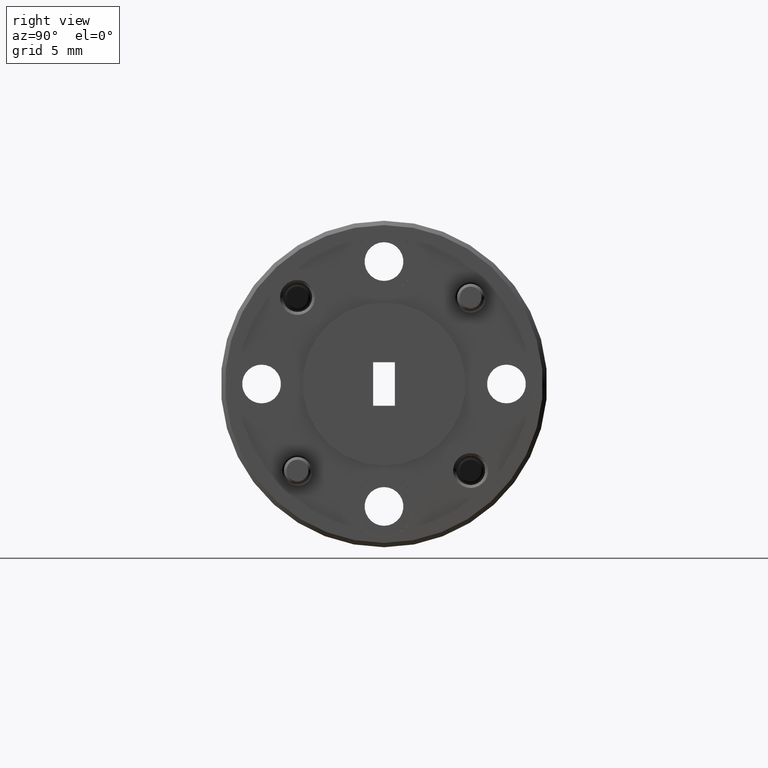
[diagram: clean part render]
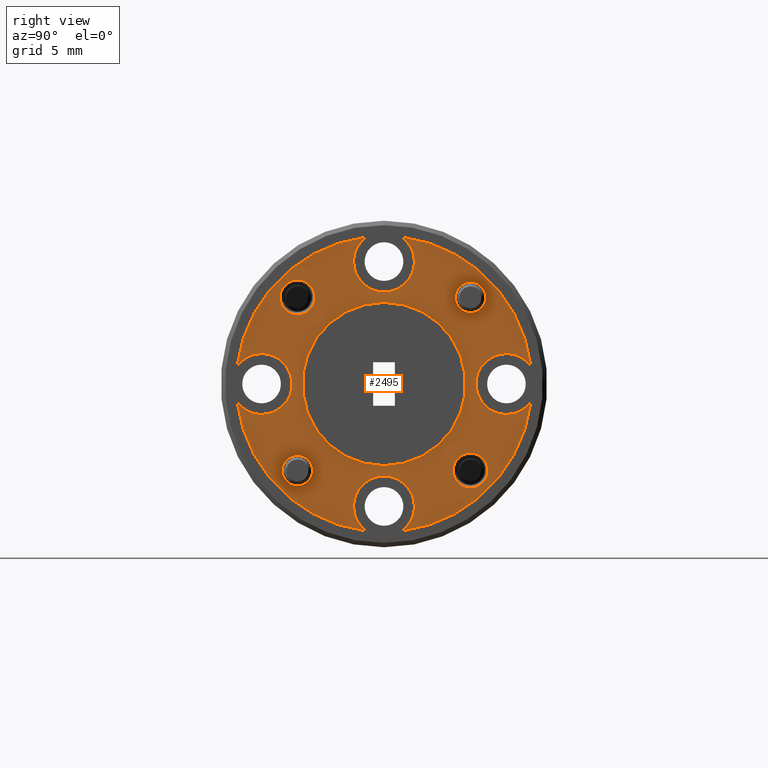
[diagram: same view with one face highlighted and labeled with its STEP entity id]
A machine part, right view. The second image highlights one B-rep face of the part: STEP entity #2495.
In plain terms, the highlighted planar face has unit normal (-1, 0, 0).
Its self-contained STEP definition (entity closure, byte-faithful):
#5 = VERTEX_POINT ( 'NONE', #2298 ) ;
#7 = ORIENTED_EDGE ( 'NONE', *, *, #1535, .T. ) ;
#30 = CIRCLE ( 'NONE', #2154, 0.07000000000000007600 ) ;
#33 = DIRECTION ( 'NONE',  ( -1.000000000000000000, -0.0000000000000000000, -0.0000000000000000000 ) ) ;
#39 = DIRECTION ( 'NONE',  ( 0.0000000000000000000, 0.0000000000000000000, -1.000000000000000000 ) ) ;
#59 = CARTESIAN_POINT ( 'NONE',  ( -2.214678697789515200, 0.9855597184799671500, 0.6486086257279395400 ) ) ;
#65 = DIRECTION ( 'NONE',  ( 0.0000000000000000000, 0.0000000000000000000, -1.000000000000000000 ) ) ;
#81 = DIRECTION ( 'NONE',  ( -1.000000000000000000, -0.0000000000000000000, -0.0000000000000000000 ) ) ;
#146 = CARTESIAN_POINT ( 'NONE',  ( -2.214678697788351700, 1.067935936271251700, 0.8174824079348077500 ) ) ;
#163 = CARTESIAN_POINT ( 'NONE',  ( -2.214678697787277400, 0.5878121540625364000, 0.6886086257260901600 ) ) ;
#169 = VERTEX_POINT ( 'NONE', #1468 ) ;
#183 = ORIENTED_EDGE ( 'NONE', *, *, #3136, .T. ) ;
#190 = CARTESIAN_POINT ( 'NONE',  ( -2.214678697788351700, 0.8284515845363033000, 0.5500574079348078400 ) ) ;
#305 = EDGE_CURVE ( 'NONE', #455, #1834, #619, .T. ) ;
#311 = DIRECTION ( 'NONE',  ( -1.000000000000000000, -0.0000000000000000000, -0.0000000000000000000 ) ) ;
#325 = DIRECTION ( 'NONE',  ( 0.0000000000000000000, 0.0000000000000000000, -1.000000000000000000 ) ) ;
#333 = DIRECTION ( 'NONE',  ( -1.000000000000000000, -0.0000000000000000000, -0.0000000000000000000 ) ) ;
#408 = CIRCLE ( 'NONE', #3214, 0.07000000000000007600 ) ;
#419 = ORIENTED_EDGE ( 'NONE', *, *, #4290, .T. ) ;
#431 = CIRCLE ( 'NONE', #458, 0.06999999999999993700 ) ;
#441 = CARTESIAN_POINT ( 'NONE',  ( -2.214678697788351700, 0.5054359362712517200, 0.8874824079348078200 ) ) ;
#455 = VERTEX_POINT ( 'NONE', #597 ) ;
#458 = AXIS2_PLACEMENT_3D ( 'NONE', #2041, #33, #2025 ) ;
#464 = CARTESIAN_POINT ( 'NONE',  ( -2.214678697788351700, 1.124110936271251800, 0.9292480561998594000 ) ) ;
#519 = CARTESIAN_POINT ( 'NONE',  ( -2.214678697788351700, 1.124110936271251800, 0.8457167596697562400 ) ) ;
#523 = DIRECTION ( 'NONE',  ( 0.0000000000000000000, 0.0000000000000000000, -1.000000000000000000 ) ) ;
#597 = CARTESIAN_POINT ( 'NONE',  ( -2.214678697788351700, 0.7866859362712517200, 1.074982407934807800 ) ) ;
#611 = CIRCLE ( 'NONE', #2309, 0.06999999999999993700 ) ;
#619 = CIRCLE ( 'NONE', #1495, 0.1874999999999999700 ) ;
#621 = CARTESIAN_POINT ( 'NONE',  ( -2.214678697788351700, 1.067935936271251700, 0.8874824079348078200 ) ) ;
#636 = CARTESIAN_POINT ( 'NONE',  ( -2.214678697788351700, 0.7866859362712517200, 0.8874824079348078200 ) ) ;
#674 = PLANE ( 'NONE',  #1071 ) ;
#759 = AXIS2_PLACEMENT_3D ( 'NONE', #621, #3620, #1945 ) ;
#782 = EDGE_CURVE ( 'NONE', #1834, #455, #1031, .T. ) ;
#827 = EDGE_CURVE ( 'NONE', #2995, #850, #30, .T. ) ;
#850 = VERTEX_POINT ( 'NONE', #4098 ) ;
#853 = ORIENTED_EDGE ( 'NONE', *, *, #2611, .F. ) ;
#857 = CARTESIAN_POINT ( 'NONE',  ( -2.214678697789515200, 0.5878121540625362900, 1.086356190143525200 ) ) ;
#858 = FACE_BOUND ( 'NONE', #1446, .T. ) ;
#872 = EDGE_LOOP ( 'NONE', ( #1205, #1343, #1607, #4304, #1958, #3531, #3794, #1432, #2169, #3798, #1003, #183, #3601, #853 ) ) ;
#906 = CARTESIAN_POINT ( 'NONE',  ( -2.214678697789515200, 0.9855597184799671500, 0.6886086257260902700 ) ) ;
#918 = VERTEX_POINT ( 'NONE', #464 ) ;
#966 = CARTESIAN_POINT ( 'NONE',  ( -2.214678697788351700, 0.7866859362712517200, 0.8874824079348078200 ) ) ;
#990 = CIRCLE ( 'NONE', #759, 0.07000000000000007600 ) ;
#999 = DIRECTION ( 'NONE',  ( -1.000000000000000000, 0.0000000000000000000, 0.0000000000000000000 ) ) ;
#1003 = ORIENTED_EDGE ( 'NONE', *, *, #827, .T. ) ;
#1007 = EDGE_LOOP ( 'NONE', ( #3590, #1287 ) ) ;
#1013 = AXIS2_PLACEMENT_3D ( 'NONE', #2322, #2020, #325 ) ;
#1023 = AXIS2_PLACEMENT_3D ( 'NONE', #3383, #2371, #1375 ) ;
#1031 = CIRCLE ( 'NONE', #2304, 0.1874999999999999700 ) ;
#1052 = DIRECTION ( 'NONE',  ( 0.0000000000000000000, 0.0000000000000000000, -1.000000000000000000 ) ) ;
#1065 = DIRECTION ( 'NONE',  ( -1.000000000000000000, -0.0000000000000000000, -0.0000000000000000000 ) ) ;
#1071 = AXIS2_PLACEMENT_3D ( 'NONE', #1675, #999, #3994 ) ;
#1075 = EDGE_CURVE ( 'NONE', #3699, #918, #1415, .T. ) ;
#1084 = CARTESIAN_POINT ( 'NONE',  ( -2.214678697789515200, 0.9855597184799671500, 0.6886086257260902700 ) ) ;
#1093 = DIRECTION ( 'NONE',  ( 0.0000000000000000000, 0.0000000000000000000, -1.000000000000000000 ) ) ;
#1095 = DIRECTION ( 'NONE',  ( -1.000000000000000000, -0.0000000000000000000, -0.0000000000000000000 ) ) ;
#1101 = DIRECTION ( 'NONE',  ( -1.000000000000000000, -0.0000000000000000000, -0.0000000000000000000 ) ) ;
#1102 = DIRECTION ( 'NONE',  ( -1.000000000000000000, -0.0000000000000000000, -0.0000000000000000000 ) ) ;
#1115 = CARTESIAN_POINT ( 'NONE',  ( -2.214678697787277400, 0.9855597184799670400, 1.086356190143525500 ) ) ;
#1122 = DIRECTION ( 'NONE',  ( 0.0000000000000000000, 0.0000000000000000000, -1.000000000000000000 ) ) ;
#1141 = CARTESIAN_POINT ( 'NONE',  ( -2.214678697789515200, 0.9855597184799671500, 0.7286086257242411200 ) ) ;
#1156 = DIRECTION ( 'NONE',  ( 6.829619984323820700E-015, 1.000000000000000000, 0.0000000000000000000 ) ) ;
#1180 = VERTEX_POINT ( 'NONE', #2761 ) ;
#1183 = CARTESIAN_POINT ( 'NONE',  ( -2.214678697787277400, 0.9855597184799670400, 1.051356190143046800 ) ) ;
#1200 = CARTESIAN_POINT ( 'NONE',  ( -2.214678697788351700, 0.7866859362712517200, 1.168732407934807800 ) ) ;
#1205 = ORIENTED_EDGE ( 'NONE', *, *, #2544, .T. ) ;
#1225 = EDGE_CURVE ( 'NONE', #2995, #1746, #3927, .T. ) ;
#1247 = EDGE_CURVE ( 'NONE', #3036, #3341, #1396, .T. ) ;
#1287 = ORIENTED_EDGE ( 'NONE', *, *, #3707, .T. ) ;
#1294 = CARTESIAN_POINT ( 'NONE',  ( -2.214678697788351700, 0.7866859362712517200, 0.6762324079348076600 ) ) ;
#1300 = DIRECTION ( 'NONE',  ( 0.0000000000000000000, 0.0000000000000000000, 1.000000000000000000 ) ) ;
#1301 = CIRCLE ( 'NONE', #3328, 0.3400000000000000800 ) ;
#1311 = CARTESIAN_POINT ( 'NONE',  ( -2.214678697788351700, 0.4492609362712516900, 0.8457167596697562400 ) ) ;
#1313 = CIRCLE ( 'NONE', #1023, 0.03999999999904438300 ) ;
#1332 = CARTESIAN_POINT ( 'NONE',  ( -2.214678697787277400, 0.5878121540625364000, 0.7236086257279128500 ) ) ;
#1343 = ORIENTED_EDGE ( 'NONE', *, *, #1247, .T. ) ;
#1344 = VERTEX_POINT ( 'NONE', #146 ) ;
#1350 = CIRCLE ( 'NONE', #1013, 0.07000000000000000700 ) ;
#1352 = CARTESIAN_POINT ( 'NONE',  ( -2.214678697788351700, 0.5054359362712517200, 0.8174824079348077500 ) ) ;
#1375 = DIRECTION ( 'NONE',  ( 6.829619984323820700E-015, 1.000000000000000000, 0.0000000000000000000 ) ) ;
#1389 = CARTESIAN_POINT ( 'NONE',  ( -2.214678697788351700, 0.7449202880062000300, 1.224907407934807900 ) ) ;
#1396 = CIRCLE ( 'NONE', #2192, 0.07000000000000000700 ) ;
#1415 = CIRCLE ( 'NONE', #2858, 0.3400000000000000800 ) ;
#1419 = AXIS2_PLACEMENT_3D ( 'NONE', #857, #1545, #1156 ) ;
#1432 = ORIENTED_EDGE ( 'NONE', *, *, #1726, .T. ) ;
#1446 = EDGE_LOOP ( 'NONE', ( #7, #4294 ) ) ;
#1447 = VERTEX_POINT ( 'NONE', #3561 ) ;
#1451 = CARTESIAN_POINT ( 'NONE',  ( -2.214678697788351700, 0.7866859362712517200, 0.6062324079348078200 ) ) ;
#1468 = CARTESIAN_POINT ( 'NONE',  ( -2.214678697787277400, 0.5878121540625364000, 0.6536086257242674800 ) ) ;
#1495 = AXIS2_PLACEMENT_3D ( 'NONE', #1835, #1540, #2528 ) ;
#1535 = EDGE_CURVE ( 'NONE', #2739, #2732, #3452, .T. ) ;
#1540 = DIRECTION ( 'NONE',  ( 1.000000000000000000, 0.0000000000000000000, 0.0000000000000000000 ) ) ;
#1545 = DIRECTION ( 'NONE',  ( -1.000000000000000000, 3.414809992352963000E-015, -0.0000000000000000000 ) ) ;
#1557 = AXIS2_PLACEMENT_3D ( 'NONE', #1115, #1101, #1093 ) ;
#1607 = ORIENTED_EDGE ( 'NONE', *, *, #1776, .F. ) ;
#1675 = CARTESIAN_POINT ( 'NONE',  ( -2.214678697788351700, 1.126685936271252000, 0.8874824079348078200 ) ) ;
#1680 = CARTESIAN_POINT ( 'NONE',  ( -2.214678697788351700, 0.7866859362712517200, 0.8874824079348078200 ) ) ;
#1721 = DIRECTION ( 'NONE',  ( 0.0000000000000000000, 0.0000000000000000000, 1.000000000000000000 ) ) ;
#1726 = EDGE_CURVE ( 'NONE', #3699, #1447, #431, .T. ) ;
#1744 = AXIS2_PLACEMENT_3D ( 'NONE', #1680, #333, #4081 ) ;
#1746 = VERTEX_POINT ( 'NONE', #1389 ) ;
#1763 = DIRECTION ( 'NONE',  ( -1.000000000000000000, -0.0000000000000000000, -0.0000000000000000000 ) ) ;
#1776 = EDGE_CURVE ( 'NONE', #3391, #3341, #2779, .T. ) ;
#1805 = DIRECTION ( 'NONE',  ( -1.000000000000000000, -0.0000000000000000000, -0.0000000000000000000 ) ) ;
#1834 = VERTEX_POINT ( 'NONE', #3230 ) ;
#1835 = CARTESIAN_POINT ( 'NONE',  ( -2.214678697788351700, 0.7866859362712517200, 0.8874824079348078200 ) ) ;
#1856 = FACE_BOUND ( 'NONE', #1007, .T. ) ;
#1900 = AXIS2_PLACEMENT_3D ( 'NONE', #1084, #1065, #1052 ) ;
#1921 = EDGE_LOOP ( 'NONE', ( #2870, #3350 ) ) ;
#1945 = DIRECTION ( 'NONE',  ( 0.0000000000000000000, -1.951319995474471800E-015, -1.000000000000000000 ) ) ;
#1958 = ORIENTED_EDGE ( 'NONE', *, *, #3581, .T. ) ;
#1967 = FACE_BOUND ( 'NONE', #2782, .T. ) ;
#1981 = DIRECTION ( 'NONE',  ( -1.000000000000000000, -0.0000000000000000000, -0.0000000000000000000 ) ) ;
#2020 = DIRECTION ( 'NONE',  ( -1.000000000000000000, -0.0000000000000000000, -0.0000000000000000000 ) ) ;
#2025 = DIRECTION ( 'NONE',  ( 0.0000000000000000000, 1.951319995474475300E-015, -1.000000000000000000 ) ) ;
#2041 = CARTESIAN_POINT ( 'NONE',  ( -2.214678697788351700, 0.7866859362712517200, 1.168732407934807800 ) ) ;
#2047 = AXIS2_PLACEMENT_3D ( 'NONE', #163, #1805, #3780 ) ;
#2052 = EDGE_CURVE ( 'NONE', #3391, #1344, #2058, .T. ) ;
#2058 = CIRCLE ( 'NONE', #3484, 0.07000000000000007600 ) ;
#2072 = FACE_BOUND ( 'NONE', #3716, .T. ) ;
#2084 = CIRCLE ( 'NONE', #3783, 0.07000000000000007600 ) ;
#2091 = DIRECTION ( 'NONE',  ( 0.0000000000000000000, -1.951319995474471800E-015, -1.000000000000000000 ) ) ;
#2108 = DIRECTION ( 'NONE',  ( -1.000000000000000000, -0.0000000000000000000, -0.0000000000000000000 ) ) ;
#2121 = CIRCLE ( 'NONE', #1900, 0.03999999999815079300 ) ;
#2154 = AXIS2_PLACEMENT_3D ( 'NONE', #4112, #1102, #2091 ) ;
#2169 = ORIENTED_EDGE ( 'NONE', *, *, #2410, .T. ) ;
#2192 = AXIS2_PLACEMENT_3D ( 'NONE', #1451, #2108, #2996 ) ;
#2288 = CIRCLE ( 'NONE', #2713, 0.07000000000000007600 ) ;
#2298 = CARTESIAN_POINT ( 'NONE',  ( -2.214678697789515600, 0.5478121540634920400, 1.086356190143525200 ) ) ;
#2304 = AXIS2_PLACEMENT_3D ( 'NONE', #3690, #3705, #1721 ) ;
#2309 = AXIS2_PLACEMENT_3D ( 'NONE', #1200, #3507, #3902 ) ;
#2322 = CARTESIAN_POINT ( 'NONE',  ( -2.214678697788351700, 0.7866859362712517200, 0.6062324079348078200 ) ) ;
#2371 = DIRECTION ( 'NONE',  ( -1.000000000000000000, 3.414809992352963000E-015, -0.0000000000000000000 ) ) ;
#2377 = ORIENTED_EDGE ( 'NONE', *, *, #2686, .T. ) ;
#2410 = EDGE_CURVE ( 'NONE', #1447, #1746, #611, .T. ) ;
#2445 = CARTESIAN_POINT ( 'NONE',  ( -2.214678697788351700, 1.067935936271251700, 0.8874824079348078200 ) ) ;
#2495 = ADVANCED_FACE ( 'NONE', ( #858, #3098, #2845, #1856, #2072, #1967 ), #674, .F. ) ;
#2528 = DIRECTION ( 'NONE',  ( 0.0000000000000000000, 0.0000000000000000000, 1.000000000000000000 ) ) ;
#2536 = CIRCLE ( 'NONE', #1419, 0.03999999999904438300 ) ;
#2544 = EDGE_CURVE ( 'NONE', #1180, #3036, #1350, .T. ) ;
#2565 = EDGE_CURVE ( 'NONE', #4126, #2777, #2121, .T. ) ;
#2611 = EDGE_CURVE ( 'NONE', #1180, #3934, #1301, .T. ) ;
#2613 = DIRECTION ( 'NONE',  ( -1.000000000000000000, -0.0000000000000000000, -0.0000000000000000000 ) ) ;
#2615 = CARTESIAN_POINT ( 'NONE',  ( -2.214678697788351700, 1.067935936271251700, 0.9574824079348078800 ) ) ;
#2618 = CARTESIAN_POINT ( 'NONE',  ( -2.214678697788351700, 0.4492609362712516900, 0.9292480561998596200 ) ) ;
#2625 = DIRECTION ( 'NONE',  ( 0.0000000000000000000, 0.0000000000000000000, -1.000000000000000000 ) ) ;
#2659 = AXIS2_PLACEMENT_3D ( 'NONE', #3386, #3491, #1122 ) ;
#2686 = EDGE_CURVE ( 'NONE', #169, #3969, #3315, .T. ) ;
#2688 = AXIS2_PLACEMENT_3D ( 'NONE', #906, #3231, #3950 ) ;
#2713 = AXIS2_PLACEMENT_3D ( 'NONE', #3357, #2717, #39 ) ;
#2714 = EDGE_CURVE ( 'NONE', #3969, #169, #2738, .T. ) ;
#2717 = DIRECTION ( 'NONE',  ( -1.000000000000000000, -0.0000000000000000000, -0.0000000000000000000 ) ) ;
#2732 = VERTEX_POINT ( 'NONE', #3768 ) ;
#2738 = CIRCLE ( 'NONE', #2047, 0.03500000000182272600 ) ;
#2739 = VERTEX_POINT ( 'NONE', #1183 ) ;
#2761 = CARTESIAN_POINT ( 'NONE',  ( -2.214678697788351700, 0.7449202880062001400, 0.5500574079348078400 ) ) ;
#2764 = DIRECTION ( 'NONE',  ( 0.0000000000000000000, 0.0000000000000000000, 1.000000000000000000 ) ) ;
#2771 = DIRECTION ( 'NONE',  ( 0.0000000000000000000, 0.0000000000000000000, -1.000000000000000000 ) ) ;
#2777 = VERTEX_POINT ( 'NONE', #1141 ) ;
#2779 = CIRCLE ( 'NONE', #4322, 0.3400000000000000800 ) ;
#2782 = EDGE_LOOP ( 'NONE', ( #2377, #3661 ) ) ;
#2845 = FACE_OUTER_BOUND ( 'NONE', #872, .T. ) ;
#2858 = AXIS2_PLACEMENT_3D ( 'NONE', #636, #2613, #4281 ) ;
#2870 = ORIENTED_EDGE ( 'NONE', *, *, #305, .F. ) ;
#2995 = VERTEX_POINT ( 'NONE', #2618 ) ;
#2996 = DIRECTION ( 'NONE',  ( 0.0000000000000000000, 0.0000000000000000000, -1.000000000000000000 ) ) ;
#3036 = VERTEX_POINT ( 'NONE', #1294 ) ;
#3098 = FACE_BOUND ( 'NONE', #1921, .T. ) ;
#3136 = EDGE_CURVE ( 'NONE', #850, #4032, #2288, .T. ) ;
#3214 = AXIS2_PLACEMENT_3D ( 'NONE', #441, #1095, #2771 ) ;
#3230 = CARTESIAN_POINT ( 'NONE',  ( -2.214678697788351700, 0.7866859362712517200, 0.6999824079348078200 ) ) ;
#3231 = DIRECTION ( 'NONE',  ( -1.000000000000000000, -0.0000000000000000000, -0.0000000000000000000 ) ) ;
#3282 = EDGE_CURVE ( 'NONE', #4032, #3934, #408, .T. ) ;
#3291 = CARTESIAN_POINT ( 'NONE',  ( -2.214678697788351700, 0.8284515845363034100, 1.224907407934807900 ) ) ;
#3295 = CARTESIAN_POINT ( 'NONE',  ( -2.214678697788351700, 1.067935936271251700, 0.8874824079348078200 ) ) ;
#3315 = CIRCLE ( 'NONE', #2659, 0.03500000000182272600 ) ;
#3328 = AXIS2_PLACEMENT_3D ( 'NONE', #3697, #1763, #2764 ) ;
#3341 = VERTEX_POINT ( 'NONE', #190 ) ;
#3350 = ORIENTED_EDGE ( 'NONE', *, *, #782, .F. ) ;
#3357 = CARTESIAN_POINT ( 'NONE',  ( -2.214678697788351700, 0.5054359362712517200, 0.8874824079348078200 ) ) ;
#3383 = CARTESIAN_POINT ( 'NONE',  ( -2.214678697789515200, 0.5878121540625362900, 1.086356190143525200 ) ) ;
#3386 = CARTESIAN_POINT ( 'NONE',  ( -2.214678697787277400, 0.5878121540625364000, 0.6886086257260901600 ) ) ;
#3391 = VERTEX_POINT ( 'NONE', #519 ) ;
#3452 = CIRCLE ( 'NONE', #3819, 0.03500000000047865500 ) ;
#3484 = AXIS2_PLACEMENT_3D ( 'NONE', #2445, #81, #65 ) ;
#3491 = DIRECTION ( 'NONE',  ( -1.000000000000000000, -0.0000000000000000000, -0.0000000000000000000 ) ) ;
#3507 = DIRECTION ( 'NONE',  ( -1.000000000000000000, -0.0000000000000000000, -0.0000000000000000000 ) ) ;
#3531 = ORIENTED_EDGE ( 'NONE', *, *, #3571, .T. ) ;
#3544 = CARTESIAN_POINT ( 'NONE',  ( -2.214678697787277400, 0.9855597184799670400, 1.086356190143525500 ) ) ;
#3561 = CARTESIAN_POINT ( 'NONE',  ( -2.214678697788351700, 0.7866859362712517200, 1.098732407934808000 ) ) ;
#3571 = EDGE_CURVE ( 'NONE', #3918, #918, #990, .T. ) ;
#3581 = EDGE_CURVE ( 'NONE', #1344, #3918, #2084, .T. ) ;
#3590 = ORIENTED_EDGE ( 'NONE', *, *, #2565, .T. ) ;
#3601 = ORIENTED_EDGE ( 'NONE', *, *, #3282, .T. ) ;
#3620 = DIRECTION ( 'NONE',  ( -1.000000000000000000, -0.0000000000000000000, -0.0000000000000000000 ) ) ;
#3630 = CIRCLE ( 'NONE', #2688, 0.03999999999815079300 ) ;
#3661 = ORIENTED_EDGE ( 'NONE', *, *, #2714, .T. ) ;
#3663 = ORIENTED_EDGE ( 'NONE', *, *, #4111, .T. ) ;
#3690 = CARTESIAN_POINT ( 'NONE',  ( -2.214678697788351700, 0.7866859362712517200, 0.8874824079348078200 ) ) ;
#3697 = CARTESIAN_POINT ( 'NONE',  ( -2.214678697788351700, 0.7866859362712517200, 0.8874824079348078200 ) ) ;
#3699 = VERTEX_POINT ( 'NONE', #3291 ) ;
#3705 = DIRECTION ( 'NONE',  ( 1.000000000000000000, 0.0000000000000000000, 0.0000000000000000000 ) ) ;
#3707 = EDGE_CURVE ( 'NONE', #2777, #4126, #3630, .T. ) ;
#3716 = EDGE_LOOP ( 'NONE', ( #3663, #419 ) ) ;
#3768 = CARTESIAN_POINT ( 'NONE',  ( -2.214678697787277400, 0.9855597184799670400, 1.121356190144004100 ) ) ;
#3780 = DIRECTION ( 'NONE',  ( 0.0000000000000000000, 0.0000000000000000000, -1.000000000000000000 ) ) ;
#3783 = AXIS2_PLACEMENT_3D ( 'NONE', #3295, #1981, #2625 ) ;
#3794 = ORIENTED_EDGE ( 'NONE', *, *, #1075, .F. ) ;
#3798 = ORIENTED_EDGE ( 'NONE', *, *, #1225, .F. ) ;
#3819 = AXIS2_PLACEMENT_3D ( 'NONE', #3544, #4200, #523 ) ;
#3902 = DIRECTION ( 'NONE',  ( 0.0000000000000000000, 0.0000000000000000000, -1.000000000000000000 ) ) ;
#3918 = VERTEX_POINT ( 'NONE', #2615 ) ;
#3927 = CIRCLE ( 'NONE', #1744, 0.3400000000000000800 ) ;
#3934 = VERTEX_POINT ( 'NONE', #1311 ) ;
#3950 = DIRECTION ( 'NONE',  ( 0.0000000000000000000, 0.0000000000000000000, -1.000000000000000000 ) ) ;
#3969 = VERTEX_POINT ( 'NONE', #1332 ) ;
#3994 = DIRECTION ( 'NONE',  ( 0.0000000000000000000, 0.0000000000000000000, 1.000000000000000000 ) ) ;
#4032 = VERTEX_POINT ( 'NONE', #1352 ) ;
#4044 = CARTESIAN_POINT ( 'NONE',  ( -2.214678697789515200, 0.6278121540615807500, 1.086356190143525200 ) ) ;
#4081 = DIRECTION ( 'NONE',  ( 0.0000000000000000000, 0.0000000000000000000, 1.000000000000000000 ) ) ;
#4098 = CARTESIAN_POINT ( 'NONE',  ( -2.214678697788351700, 0.5054359362712517200, 0.9574824079348078800 ) ) ;
#4111 = EDGE_CURVE ( 'NONE', #4117, #5, #1313, .T. ) ;
#4112 = CARTESIAN_POINT ( 'NONE',  ( -2.214678697788351700, 0.5054359362712517200, 0.8874824079348078200 ) ) ;
#4117 = VERTEX_POINT ( 'NONE', #4044 ) ;
#4126 = VERTEX_POINT ( 'NONE', #59 ) ;
#4132 = EDGE_CURVE ( 'NONE', #2732, #2739, #4156, .T. ) ;
#4156 = CIRCLE ( 'NONE', #1557, 0.03500000000047865500 ) ;
#4200 = DIRECTION ( 'NONE',  ( -1.000000000000000000, -0.0000000000000000000, -0.0000000000000000000 ) ) ;
#4281 = DIRECTION ( 'NONE',  ( 0.0000000000000000000, 0.0000000000000000000, 1.000000000000000000 ) ) ;
#4290 = EDGE_CURVE ( 'NONE', #5, #4117, #2536, .T. ) ;
#4294 = ORIENTED_EDGE ( 'NONE', *, *, #4132, .T. ) ;
#4304 = ORIENTED_EDGE ( 'NONE', *, *, #2052, .T. ) ;
#4322 = AXIS2_PLACEMENT_3D ( 'NONE', #966, #311, #1300 ) ;